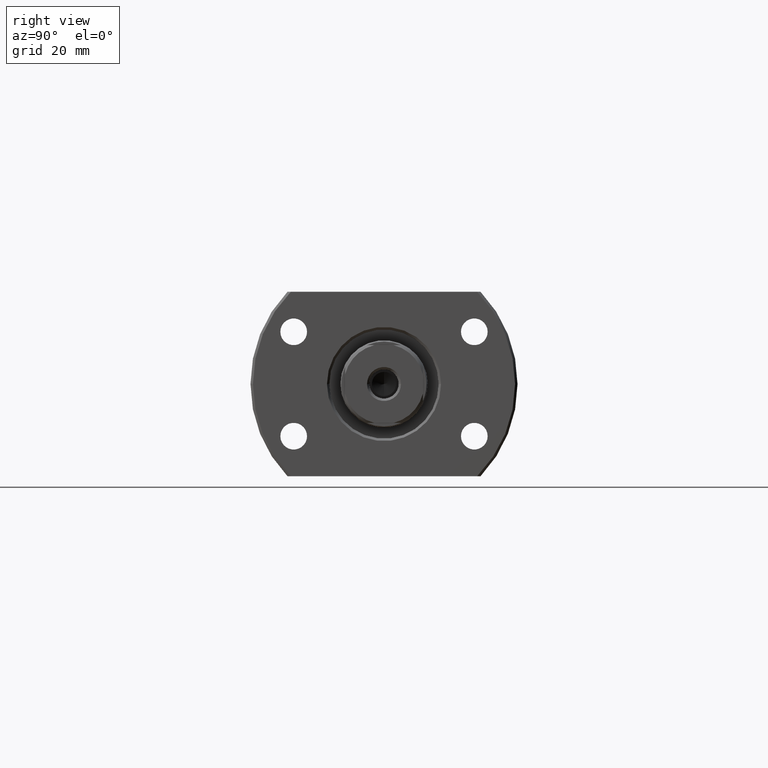
[diagram: clean part render]
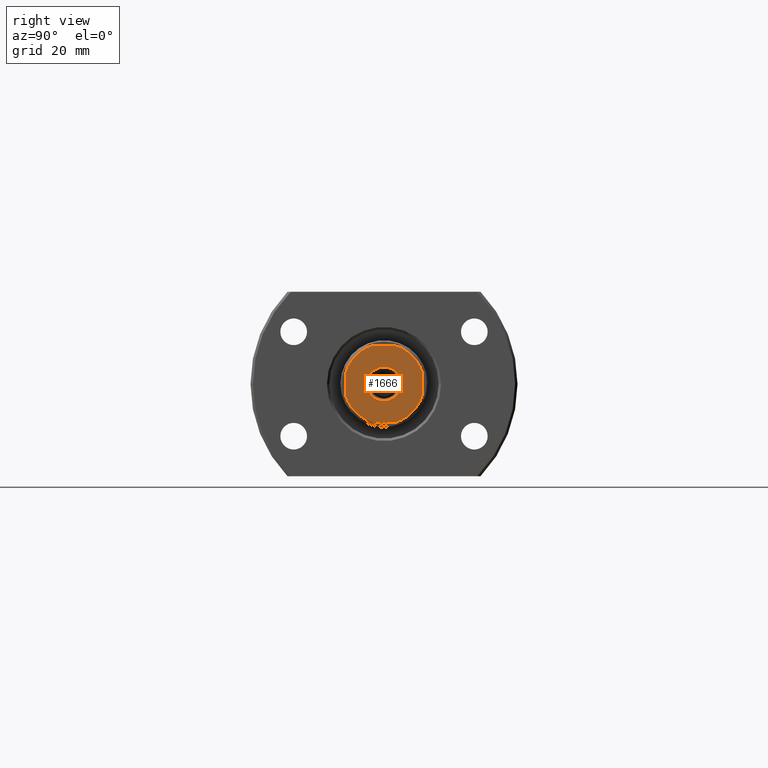
[diagram: same view with one face highlighted and labeled with its STEP entity id]
A machine part, right view. The second image highlights one B-rep face of the part: STEP entity #1666.
In plain terms, the highlighted planar face has unit normal (-1, -0, 0).
Its self-contained STEP definition (entity closure, byte-faithful):
#7 = DIRECTION ( 'NONE',  ( 1.566181886088263474E-14, 1.000000000000000000, 2.447159197012911678E-16 ) ) ;
#59 = VERTEX_POINT ( 'NONE', #2124 ) ;
#90 = CARTESIAN_POINT ( 'NONE',  ( 135.0000000000000000, 2.015564437074485404, -8.000000000000000000 ) ) ;
#96 = LINE ( 'NONE', #2834, #1429 ) ;
#111 = VERTEX_POINT ( 'NONE', #2169 ) ;
#118 = CIRCLE ( 'NONE', #757, 3.500000000000500044 ) ;
#121 = DIRECTION ( 'NONE',  ( 1.000000000000000000, 1.069542322069065801E-17, 0.000000000000000000 ) ) ;
#146 = LINE ( 'NONE', #1167, #330 ) ;
#195 = VERTEX_POINT ( 'NONE', #90 ) ;
#218 = AXIS2_PLACEMENT_3D ( 'NONE', #2387, #2681, #1258 ) ;
#245 = CARTESIAN_POINT ( 'NONE',  ( 134.9999999999999716, 1.443882134793238487E-15, 0.000000000000000000 ) ) ;
#329 = EDGE_CURVE ( 'NONE', #1165, #111, #2750, .T. ) ;
#330 = VECTOR ( 'NONE', #2151, 1000.000000000000000 ) ;
#336 = VERTEX_POINT ( 'NONE', #955 ) ;
#343 = DIRECTION ( 'NONE',  ( 0.000000000000000000, -1.000000000000000000, 2.664535259100376091E-15 ) ) ;
#347 = VERTEX_POINT ( 'NONE', #1238 ) ;
#470 = CARTESIAN_POINT ( 'NONE',  ( 134.9999999999999432, -2.015564437074556459, 8.000000000000001776 ) ) ;
#479 = DIRECTION ( 'NONE',  ( 1.069542322069065801E-17, -1.000000000000000000, 0.000000000000000000 ) ) ;
#486 = CARTESIAN_POINT ( 'NONE',  ( 134.9999999999999716, 1.443882134793238487E-15, 0.000000000000000000 ) ) ;
#535 = ORIENTED_EDGE ( 'NONE', *, *, #1198, .T. ) ;
#615 = VECTOR ( 'NONE', #7, 1000.000000000000000 ) ;
#644 = EDGE_CURVE ( 'NONE', #195, #1732, #2649, .T. ) ;
#677 = FACE_BOUND ( 'NONE', #680, .T. ) ;
#680 = EDGE_LOOP ( 'NONE', ( #2237, #2680 ) ) ;
#682 = AXIS2_PLACEMENT_3D ( 'NONE', #997, #1956, #977 ) ;
#703 = DIRECTION ( 'NONE',  ( 0.000000000000000000, 0.000000000000000000, -1.000000000000000000 ) ) ;
#749 = DIRECTION ( 'NONE',  ( 0.000000000000000000, -1.000000000000000000, 0.000000000000000000 ) ) ;
#757 = AXIS2_PLACEMENT_3D ( 'NONE', #2740, #2449, #1753 ) ;
#815 = VECTOR ( 'NONE', #703, 1000.000000000000000 ) ;
#940 = ORIENTED_EDGE ( 'NONE', *, *, #644, .T. ) ;
#955 = CARTESIAN_POINT ( 'NONE',  ( 134.9999999999999716, -3.500000000002859490, 4.286263797016497846E-16 ) ) ;
#977 = DIRECTION ( 'NONE',  ( 0.000000000000000000, -1.000000000000000000, 1.776356839400250465E-15 ) ) ;
#997 = CARTESIAN_POINT ( 'NONE',  ( 134.9999999999999716, 1.443882134793238487E-15, 0.000000000000000000 ) ) ;
#1046 = DIRECTION ( 'NONE',  ( 1.000000000000000000, 1.069542322069065801E-17, 0.000000000000000000 ) ) ;
#1070 = ORIENTED_EDGE ( 'NONE', *, *, #1410, .F. ) ;
#1122 = EDGE_CURVE ( 'NONE', #195, #1553, #96, .T. ) ;
#1133 = EDGE_LOOP ( 'NONE', ( #3183, #940, #2391, #2926, #3215, #2796, #1070, #535 ) ) ;
#1140 = CIRCLE ( 'NONE', #1299, 8.249999999999980460 ) ;
#1141 = EDGE_CURVE ( 'NONE', #59, #336, #3223, .T. ) ;
#1165 = VERTEX_POINT ( 'NONE', #2924 ) ;
#1167 = CARTESIAN_POINT ( 'NONE',  ( 134.9999999999998295, -8.000000000002236433, -3.544361719689460788 ) ) ;
#1198 = EDGE_CURVE ( 'NONE', #2822, #1553, #1334, .T. ) ;
#1238 = CARTESIAN_POINT ( 'NONE',  ( 134.9999999999998295, -8.000000000002239986, 2.015564437065668901 ) ) ;
#1245 = DIRECTION ( 'NONE',  ( 0.000000000000000000, -1.000000000000000000, 0.000000000000000000 ) ) ;
#1258 = DIRECTION ( 'NONE',  ( 0.000000000000000000, -1.000000000000000000, 0.000000000000000000 ) ) ;
#1281 = CARTESIAN_POINT ( 'NONE',  ( 134.9999999999999147, -3.544361719691696777, 8.000000000000000000 ) ) ;
#1299 = AXIS2_PLACEMENT_3D ( 'NONE', #2571, #121, #343 ) ;
#1334 = CIRCLE ( 'NONE', #1864, 8.249999999999980460 ) ;
#1410 = EDGE_CURVE ( 'NONE', #2822, #347, #146, .T. ) ;
#1429 = VECTOR ( 'NONE', #2615, 1000.000000000000000 ) ;
#1465 = DIRECTION ( 'NONE',  ( 1.000000000000000000, 1.069542322069065801E-17, 0.000000000000000000 ) ) ;
#1468 = DIRECTION ( 'NONE',  ( -1.000000000000000000, -1.069542322069065801E-17, 0.000000000000000000 ) ) ;
#1553 = VERTEX_POINT ( 'NONE', #2390 ) ;
#1622 = CARTESIAN_POINT ( 'NONE',  ( 134.9999999999999716, -8.000000000002236433, -2.015564437065677339 ) ) ;
#1666 = ADVANCED_FACE ( 'NONE', ( #677, #1672 ), #3156, .F. ) ;
#1672 = FACE_OUTER_BOUND ( 'NONE', #1133, .T. ) ;
#1710 = CARTESIAN_POINT ( 'NONE',  ( 134.9999999999999716, -5.004653406798891484E-34, 0.000000000000000000 ) ) ;
#1732 = VERTEX_POINT ( 'NONE', #2068 ) ;
#1748 = LINE ( 'NONE', #1281, #615 ) ;
#1753 = DIRECTION ( 'NONE',  ( 0.000000000000000000, -1.000000000000000000, 0.000000000000000000 ) ) ;
#1864 = AXIS2_PLACEMENT_3D ( 'NONE', #245, #1465, #1245 ) ;
#1937 = AXIS2_PLACEMENT_3D ( 'NONE', #486, #1046, #749 ) ;
#1956 = DIRECTION ( 'NONE',  ( 1.000000000000000000, 1.069542322069065801E-17, 0.000000000000000000 ) ) ;
#1958 = LINE ( 'NONE', #2397, #815 ) ;
#2068 = CARTESIAN_POINT ( 'NONE',  ( 135.0000000000001137, 7.999999999997764455, -2.015564437083364524 ) ) ;
#2111 = EDGE_CURVE ( 'NONE', #1165, #1732, #1958, .T. ) ;
#2124 = CARTESIAN_POINT ( 'NONE',  ( 134.9999999999999716, 3.499999999998256950, 0.000000000000000000 ) ) ;
#2151 = DIRECTION ( 'NONE',  ( 0.000000000000000000, -4.894318394025823356E-16, 1.000000000000000000 ) ) ;
#2169 = CARTESIAN_POINT ( 'NONE',  ( 135.0000000000000000, 2.015564437074639059, 8.000000000000001776 ) ) ;
#2235 = EDGE_CURVE ( 'NONE', #336, #59, #118, .T. ) ;
#2237 = ORIENTED_EDGE ( 'NONE', *, *, #1141, .T. ) ;
#2269 = VERTEX_POINT ( 'NONE', #470 ) ;
#2387 = CARTESIAN_POINT ( 'NONE',  ( 134.9999999999999716, -2.237307479314511110E-12, 0.000000000000000000 ) ) ;
#2390 = CARTESIAN_POINT ( 'NONE',  ( 134.9999999999999432, -2.015564437074559567, -8.000000000000001776 ) ) ;
#2391 = ORIENTED_EDGE ( 'NONE', *, *, #2111, .F. ) ;
#2397 = CARTESIAN_POINT ( 'NONE',  ( 135.0000000000001137, 7.999999999997764455, 3.544361719689459456 ) ) ;
#2400 = AXIS2_PLACEMENT_3D ( 'NONE', #1710, #1468, #479 ) ;
#2449 = DIRECTION ( 'NONE',  ( -1.000000000000000000, -1.069542322069065801E-17, -0.000000000000000000 ) ) ;
#2571 = CARTESIAN_POINT ( 'NONE',  ( 134.9999999999999716, 1.443882134793238487E-15, 0.000000000000000000 ) ) ;
#2615 = DIRECTION ( 'NONE',  ( -1.566181886088263474E-14, -1.000000000000000000, -2.447159197012911678E-16 ) ) ;
#2649 = CIRCLE ( 'NONE', #1937, 8.249999999999962697 ) ;
#2680 = ORIENTED_EDGE ( 'NONE', *, *, #2235, .T. ) ;
#2681 = DIRECTION ( 'NONE',  ( -1.000000000000000000, -1.069542322069065801E-17, -0.000000000000000000 ) ) ;
#2740 = CARTESIAN_POINT ( 'NONE',  ( 134.9999999999999716, -2.237307479314511110E-12, 0.000000000000000000 ) ) ;
#2750 = CIRCLE ( 'NONE', #682, 8.250000000000000000 ) ;
#2796 = ORIENTED_EDGE ( 'NONE', *, *, #2816, .T. ) ;
#2816 = EDGE_CURVE ( 'NONE', #2269, #347, #1140, .T. ) ;
#2822 = VERTEX_POINT ( 'NONE', #1622 ) ;
#2834 = CARTESIAN_POINT ( 'NONE',  ( 135.0000000000000284, 3.544361719687222134, -8.000000000000000000 ) ) ;
#2924 = CARTESIAN_POINT ( 'NONE',  ( 134.9999999999999716, 7.999999999997764455, 2.015564437083522176 ) ) ;
#2926 = ORIENTED_EDGE ( 'NONE', *, *, #329, .T. ) ;
#3156 = PLANE ( 'NONE',  #2400 ) ;
#3183 = ORIENTED_EDGE ( 'NONE', *, *, #1122, .F. ) ;
#3213 = EDGE_CURVE ( 'NONE', #2269, #111, #1748, .T. ) ;
#3215 = ORIENTED_EDGE ( 'NONE', *, *, #3213, .F. ) ;
#3223 = CIRCLE ( 'NONE', #218, 3.500000000000500044 ) ;